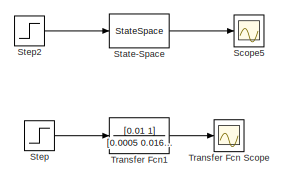
[diagram: root canvas - part 1/5, top left region]
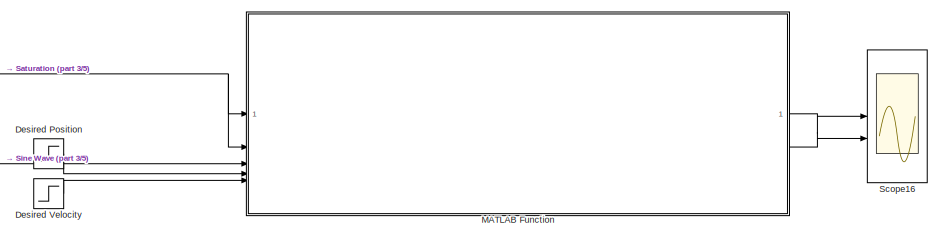
[diagram: root canvas - part 2/5, top right region]
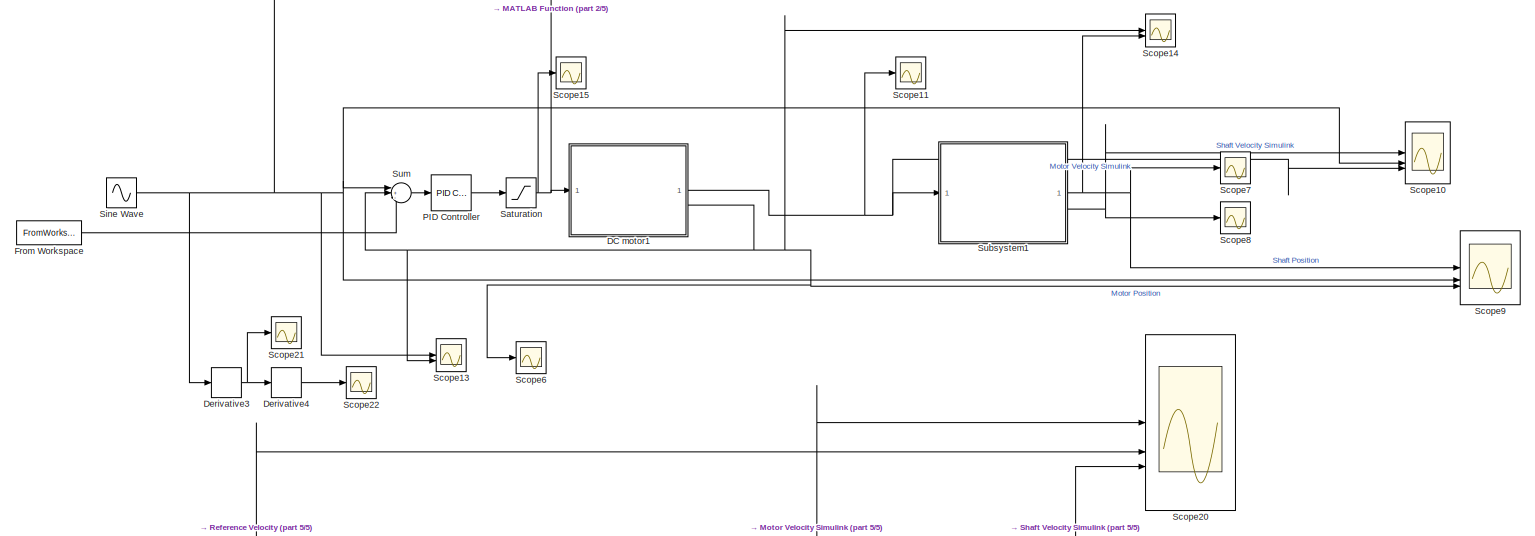
[diagram: root canvas - part 3/5, middle left region]
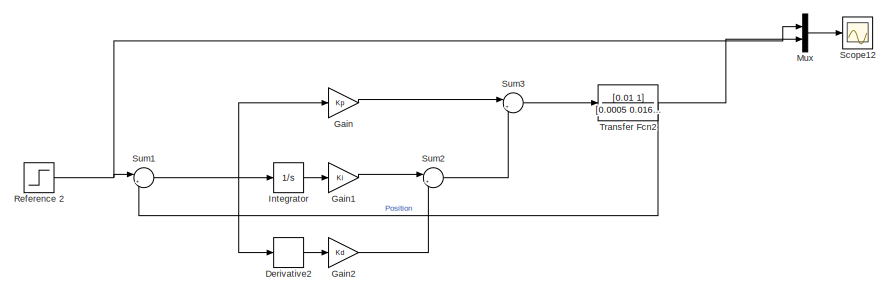
[diagram: root canvas - part 4/5, middle right region]
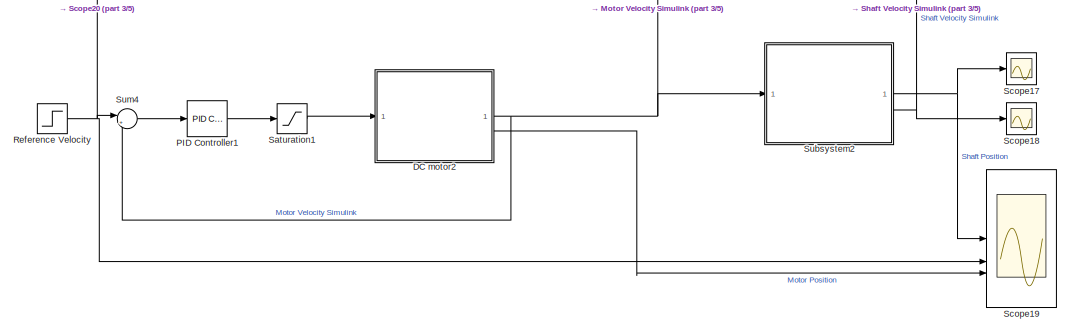
[diagram: root canvas - part 5/5, bottom left region]
MODEL slx_26b054269566
KIND model
CONFIG AbsTol = auto
CONFIG EnableMultiTasking = off
CONFIG FixedStep = auto
CONFIG MaxStep = auto
CONFIG MinStep = auto
CONFIG RelTol = 1e-3
CONFIG SampleTimeConstraint = Unconstrained
CONFIG SolverName = VariableStepAuto
CONFIG StartTime = 0.0
CONFIG StopTime = 10.0
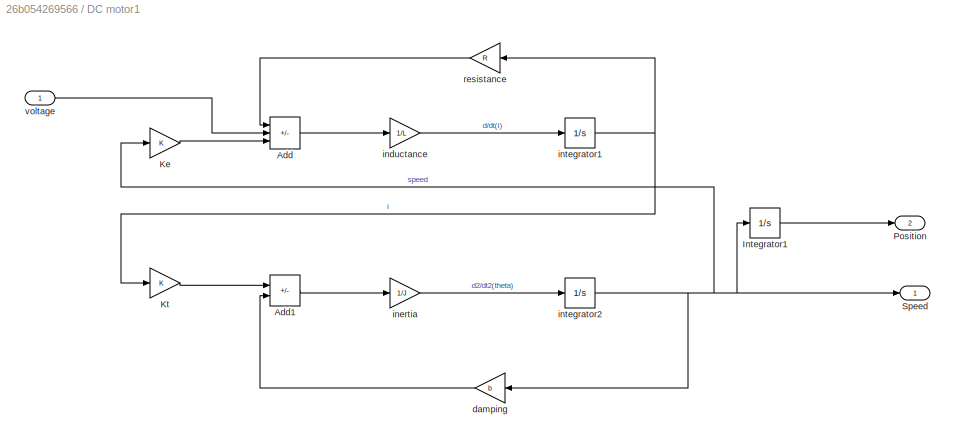
BLOCK [SubSystem] DC motor1
BLOCK [Sum] DC motor1/Add
  IconShape = rectangular
  Inputs = -+-
BLOCK [Sum] DC motor1/Add1
  IconShape = rectangular
  Inputs = +-
BLOCK [Integrator] DC motor1/Integrator1
BLOCK [Gain] DC motor1/Ke
  Gain = K
BLOCK [Gain] DC motor1/Kt
  Gain = K
BLOCK [Outport] DC motor1/Position
  Port = 2
BLOCK [Outport] DC motor1/Speed
BLOCK [Gain] DC motor1/damping
  Gain = b
BLOCK [Gain] DC motor1/inductance 
  Gain = 1/L
BLOCK [Gain] DC motor1/inertia
  Gain = 1/J
BLOCK [Integrator] DC motor1/integrator1
BLOCK [Integrator] DC motor1/integrator2
BLOCK [Gain] DC motor1/resistance
  Gain = R
BLOCK [Inport] DC motor1/voltage
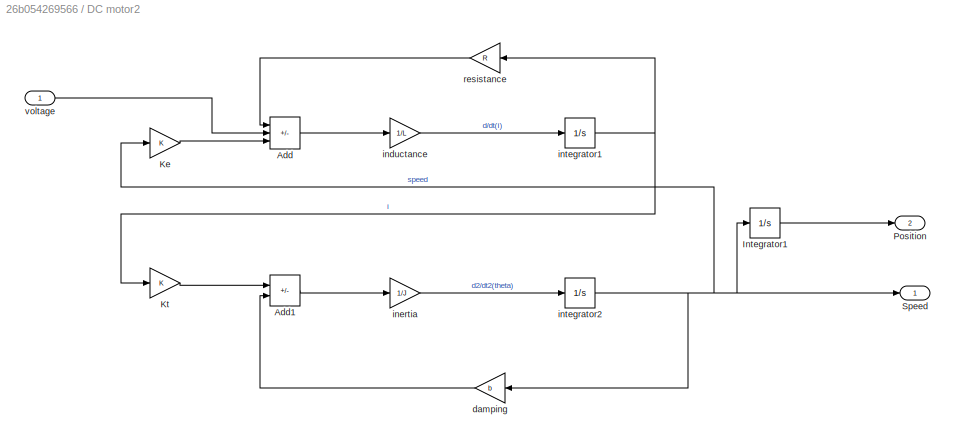
BLOCK [SubSystem] DC motor2
BLOCK [Sum] DC motor2/Add
  IconShape = rectangular
  Inputs = -+-
BLOCK [Sum] DC motor2/Add1
  IconShape = rectangular
  Inputs = +-
BLOCK [Integrator] DC motor2/Integrator1
BLOCK [Gain] DC motor2/Ke
  Gain = K
BLOCK [Gain] DC motor2/Kt
  Gain = K
BLOCK [Outport] DC motor2/Position
  Port = 2
BLOCK [Outport] DC motor2/Speed
BLOCK [Gain] DC motor2/damping
  Gain = b
BLOCK [Gain] DC motor2/inductance 
  Gain = 1/L
BLOCK [Gain] DC motor2/inertia
  Gain = 1/J
BLOCK [Integrator] DC motor2/integrator1
BLOCK [Integrator] DC motor2/integrator2
BLOCK [Gain] DC motor2/resistance
  Gain = R
BLOCK [Inport] DC motor2/voltage
BLOCK [Derivative] Derivative2
BLOCK [Derivative] Derivative3
BLOCK [Derivative] Derivative4
BLOCK [Step] Desired Position 
  After = 50
  SampleTime = 0
BLOCK [Step] Desired Velocity
  After = 5
  SampleTime = 0
BLOCK [FromWorkspace] From Workspace
  VariableName = position_time_matrix
BLOCK [Gain] Gain
  Gain = Kp
BLOCK [Gain] Gain1
  Gain = Ki
BLOCK [Gain] Gain2
  Gain = Kd
BLOCK [Integrator] Integrator
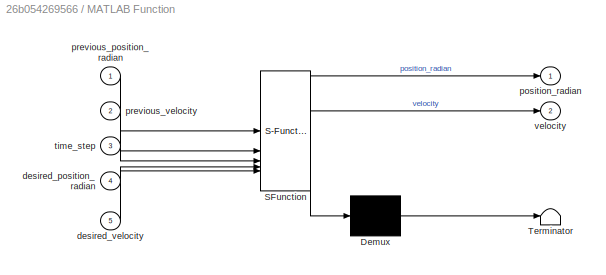
BLOCK [SubSystem] MATLAB Function
  ErrorFcn = Stateflow.Translate.translate
  LibrarySourceBlock = simulink/User-Defined\nFunctions/MATLAB Function
  PermitHierarchicalResolution = ExplicitOnly
  SFBlockType = MATLAB Function
  TreatAsAtomicUnit = on
BLOCK [Demux] MATLAB Function/ Demux 
  Outputs = 1
BLOCK [S-Function] MATLAB Function/ SFunction 
  EnableBusSupport = on
  FunctionName = sf_sfun
  PortCounts = [5 3]
  SFcnIsStateOwnerBlock = off
  SFunctionDeploymentMode = off
  Tag = Stateflow S-Function 2
BLOCK [Terminator] MATLAB Function/ Terminator 
BLOCK [Inport] MATLAB Function/desired_position_radian
  Port = 4
BLOCK [Inport] MATLAB Function/desired_velocity
  Port = 5
BLOCK [Outport] MATLAB Function/position_radian
BLOCK [Inport] MATLAB Function/previous_position_radian
BLOCK [Inport] MATLAB Function/previous_velocity
  Port = 2
BLOCK [Inport] MATLAB Function/time_step
  Port = 3
BLOCK [Outport] MATLAB Function/velocity
  Port = 2
BLOCK [Mux] Mux
  DisplayOption = bar
  Inputs = 2
BLOCK [Reference] PID Controller  REF=slpidlib/PID Controller
  LibrarySourceBlock = simulink/Continuous/PID Controller
  SourceBlock = slpidlib/PID Controller
  SourceType = PID 1dof
BLOCK [Reference] PID Controller1  REF=slpidlib/PID Controller
  LibrarySourceBlock = simulink/Continuous/PID Controller
  SourceBlock = slpidlib/PID Controller
  SourceType = PID 1dof
BLOCK [Step] Reference 2
  SampleTime = 0
BLOCK [Step] Reference Velocity
  SampleTime = 0
BLOCK [Saturate] Saturation
  LowerLimit = 0
  UpperLimit = 50
BLOCK [Saturate] Saturation1
  LowerLimit = -255
  UpperLimit = 255
BLOCK [Scope] Scope10
  Floating = off
  NumInputPorts = 3
  ScopeSpecificationString = Simulink.scopes.TimeScopeBlockCfg('CurrentConfiguration', extmgr.ConfigurationSet(extmgr.Configuration('Core','General UI',true),extmgr.Configuration('Core','Source UI',true),extmgr.Configuration('Sources','WiredSimulink',true,'DataLoggingVariableName','ScopeData1'),extmgr.Configuration('Visuals','Time Domain',true,'SerializedDisplays',{struct('MinYLimReal','-1.74923','MaxYLimReal','5.74436','YLab...<+1670ch>
BLOCK [Scope] Scope11
  Floating = off
  NumInputPorts = 1
  ScopeSpecificationString = Simulink.scopes.TimeScopeBlockCfg('CurrentConfiguration', extmgr.ConfigurationSet(extmgr.Configuration('Core','General UI',true),extmgr.Configuration('Core','Source UI',true),extmgr.Configuration('Sources','WiredSimulink',true,'DataLoggingVariableName','ScopeData2'),extmgr.Configuration('Visuals','Time Domain',true,'SerializedDisplays',{struct('MinYLimReal','-6.24384','MaxYLimReal','6.24377','YLab...<+1409ch>
BLOCK [Scope] Scope12
  Floating = off
  NumInputPorts = 1
  ScopeSpecificationString = Simulink.scopes.TimeScopeBlockCfg('CurrentConfiguration', extmgr.ConfigurationSet(extmgr.Configuration('Core','General UI',true),extmgr.Configuration('Core','Source UI',true),extmgr.Configuration('Sources','WiredSimulink',true,'DataLoggingVariableName','ScopeData3'),extmgr.Configuration('Visuals','Time Domain',true,'SerializedDisplays',{struct('MinYLimReal','-0.14179','MaxYLimReal','1.27613','YLab...<+1381ch>
BLOCK [Scope] Scope13
  Floating = off
  NumInputPorts = 2
  ScopeSpecificationString = Simulink.scopes.TimeScopeBlockCfg('CurrentConfiguration', extmgr.ConfigurationSet(extmgr.Configuration('Core','General UI',true),extmgr.Configuration('Core','Source UI',true),extmgr.Configuration('Sources','WiredSimulink',true,'DataLoggingVariableName','ScopeData4'),extmgr.Configuration('Visuals','Time Domain',true,'SerializedDisplays',{struct('MinYLimReal','-49.18523','MaxYLimReal','261.02058','Y...<+1416ch>
BLOCK [Scope] Scope14
  Floating = off
  NumInputPorts = 2
  ScopeSpecificationString = Simulink.scopes.TimeScopeBlockCfg('CurrentConfiguration', extmgr.ConfigurationSet(extmgr.Configuration('Core','General UI',true),extmgr.Configuration('Core','Source UI',true),extmgr.Configuration('Sources','WiredSimulink',true,'DataLoggingVariableName','ScopeData5'),extmgr.Configuration('Visuals','Time Domain',true,'SerializedDisplays',{struct('MinYLimReal','-49.18523','MaxYLimReal','261.02058','Y...<+1446ch>
BLOCK [Scope] Scope15
  Floating = off
  NumInputPorts = 1
  ScopeSpecificationString = Simulink.scopes.TimeScopeBlockCfg('CurrentConfiguration', extmgr.ConfigurationSet(extmgr.Configuration('Core','General UI',true),extmgr.Configuration('Core','Source UI',true),extmgr.Configuration('Sources','WiredSimulink',true,'DataLoggingVariableName','ScopeData6'),extmgr.Configuration('Visuals','Time Domain',true,'SerializedDisplays',{struct('MinYLimReal','-62.5','MaxYLimReal','62.5','YLabelReal...<+1349ch>
BLOCK [Scope] Scope16
  Floating = off
  NumInputPorts = 2
  ScopeSpecificationString = Simulink.scopes.TimeScopeBlockCfg('CurrentConfiguration', extmgr.ConfigurationSet(extmgr.Configuration('Core','General UI',true),extmgr.Configuration('Core','Source UI',true),extmgr.Configuration('Sources','WiredSimulink',true,'DataLoggingVariableName','ScopeData7'),extmgr.Configuration('Visuals','Time Domain',true,'SerializedDisplays',{struct('MinYLimReal','-0.43916','MaxYLimReal','6.26731','YLab...<+1461ch>
BLOCK [Scope] Scope17
  Floating = off
  NumInputPorts = 1
  ScopeSpecificationString = Simulink.scopes.TimeScopeBlockCfg('CurrentConfiguration', extmgr.ConfigurationSet(extmgr.Configuration('Core','General UI',true),extmgr.Configuration('Core','Source UI',true),extmgr.Configuration('Sources','WiredSimulink',true,'DataLoggingVariableName','ScopeData8'),extmgr.Configuration('Visuals','Time Domain',true,'SerializedDisplays',{struct('MinYLimReal','-0.20456','MaxYLimReal','1.841','YLabel...<+1386ch>
BLOCK [Scope] Scope18
  Floating = off
  NameLocation = top
  NumInputPorts = 1
  ScopeSpecificationString = Simulink.scopes.TimeScopeBlockCfg('CurrentConfiguration', extmgr.ConfigurationSet(extmgr.Configuration('Core','General UI',true),extmgr.Configuration('Core','Source UI',true),extmgr.Configuration('Sources','WiredSimulink',true,'DataLoggingVariableName','ScopeData9'),extmgr.Configuration('Visuals','Time Domain',true,'SerializedDisplays',{struct('MinYLimReal','-0.1869','MaxYLimReal','1.2015','YLabel...<+1454ch>
BLOCK [Scope] Scope19
  Floating = off
  NumInputPorts = 3
  ScopeSpecificationString = Simulink.scopes.TimeScopeBlockCfg('CurrentConfiguration', extmgr.ConfigurationSet(extmgr.Configuration('Core','General UI',true),extmgr.Configuration('Core','Source UI',true),extmgr.Configuration('Sources','WiredSimulink',true,'DataLoggingVariableName','ScopeData10'),extmgr.Configuration('Visuals','Time Domain',true,'SerializedDisplays',{struct('MinYLimReal','-62.27645','MaxYLimReal','560.48807','...<+1441ch>
BLOCK [Scope] Scope20
  Floating = off
  NumInputPorts = 3
  ScopeSpecificationString = Simulink.scopes.TimeScopeBlockCfg('CurrentConfiguration', extmgr.ConfigurationSet(extmgr.Configuration('Core','General UI',true),extmgr.Configuration('Core','Source UI',true),extmgr.Configuration('Sources','WiredSimulink',true,'DataLoggingVariableName','ScopeData11'),extmgr.Configuration('Visuals','Time Domain',true,'SerializedDisplays',{struct('MinYLimReal','-0.125','MaxYLimReal','1.12502','YLabe...<+1485ch>
BLOCK [Scope] Scope21
  Floating = off
  NumInputPorts = 1
  ScopeSpecificationString = Simulink.scopes.TimeScopeBlockCfg('CurrentConfiguration', extmgr.ConfigurationSet(extmgr.Configuration('Core','General UI',true),extmgr.Configuration('Core','Source UI',true),extmgr.Configuration('Sources','WiredSimulink',true,'DataLoggingVariableName','ScopeData12'),extmgr.Configuration('Visuals','Time Domain',true,'SerializedDisplays',{struct('MinYLimReal','-175921860444159.96875','MaxYLimReal',...<+1483ch>
BLOCK [Scope] Scope22
  Floating = off
  NumInputPorts = 1
  ScopeSpecificationString = Simulink.scopes.TimeScopeBlockCfg('CurrentConfiguration', extmgr.ConfigurationSet(extmgr.Configuration('Core','General UI',true),extmgr.Configuration('Core','Source UI',true),extmgr.Configuration('Sources','WiredSimulink',true,'DataLoggingVariableName','ScopeData13'),extmgr.Configuration('Visuals','Time Domain',true,'SerializedDisplays',{struct('MinYLimReal','-136173404321391830238903664640.00000'...<+1599ch>
BLOCK [Scope] Scope5
  Floating = off
  NumInputPorts = 1
  ScopeSpecificationString = Simulink.scopes.TimeScopeBlockCfg('CurrentConfiguration', extmgr.ConfigurationSet(extmgr.Configuration('Core','General UI',true),extmgr.Configuration('Core','Source UI',true),extmgr.Configuration('Sources','WiredSimulink',true,'DataLoggingVariableName','ScopeData17'),extmgr.Configuration('Visuals','Time Domain',true,'SerializedDisplays',{struct('MinYLimReal','0.05272','MaxYLimReal','19.95422','YLa...<+1444ch>
BLOCK [Scope] Scope6
  Floating = off
  NumInputPorts = 1
  ScopeSpecificationString = Simulink.scopes.TimeScopeBlockCfg('CurrentConfiguration', extmgr.ConfigurationSet(extmgr.Configuration('Core','General UI',true),extmgr.Configuration('Core','Source UI',true),extmgr.Configuration('Sources','WiredSimulink',true,'DataLoggingVariableName','ScopeData14'),extmgr.Configuration('Visuals','Time Domain',true,'SerializedDisplays',{struct('MinYLimReal','-49.18523','MaxYLimReal','261.02058','...<+1382ch>
BLOCK [Scope] Scope7
  Floating = off
  NumInputPorts = 1
  ScopeSpecificationString = Simulink.scopes.TimeScopeBlockCfg('CurrentConfiguration', extmgr.ConfigurationSet(extmgr.Configuration('Core','General UI',true),extmgr.Configuration('Core','Source UI',true),extmgr.Configuration('Sources','WiredSimulink',true,'DataLoggingVariableName','ScopeData15'),extmgr.Configuration('Visuals','Time Domain',true,'SerializedDisplays',{struct('MinYLimReal','-0.20456','MaxYLimReal','1.841','YLabe...<+1387ch>
BLOCK [Scope] Scope8
  Floating = off
  NameLocation = top
  NumInputPorts = 1
  ScopeSpecificationString = Simulink.scopes.TimeScopeBlockCfg('CurrentConfiguration', extmgr.ConfigurationSet(extmgr.Configuration('Core','General UI',true),extmgr.Configuration('Core','Source UI',true),extmgr.Configuration('Sources','WiredSimulink',true,'DataLoggingVariableName','ScopeData16'),extmgr.Configuration('Visuals','Time Domain',true,'SerializedDisplays',{struct('MinYLimReal','-0.1869','MaxYLimReal','1.2015','YLabe...<+1455ch>
BLOCK [Scope] Scope9
  Floating = off
  NumInputPorts = 3
  ScopeSpecificationString = Simulink.scopes.TimeScopeBlockCfg('CurrentConfiguration', extmgr.ConfigurationSet(extmgr.Configuration('Core','General UI',true),extmgr.Configuration('Core','Source UI',true),extmgr.Configuration('Sources','WiredSimulink',true),extmgr.Configuration('Visuals','Time Domain',true,'SerializedDisplays',{struct('MinYLimReal','-98.40325','MaxYLimReal','50.69138','YLabelReal','','MinYLimMag','0.00000','Ma...<+1484ch>
BLOCK [Sin] Sine Wave
  SampleTime = 0
BLOCK [StateSpace] State-Space
  A = [-32 -1260 -12400 -20020 0; 1 0 0 0 0; 0 1 0 0 0; 0 0 1 0 0; 0 0 0 1 0]
  B = [1; 0; 0; 0; 0]
  C = [0 0 0 20 2000]
  D = [0]
  InitialCondition = [0;0;0;0;0]
BLOCK [Step] Step
  After = 5
  SampleTime = 0
BLOCK [Step] Step2
  After = 5
  SampleTime = 0
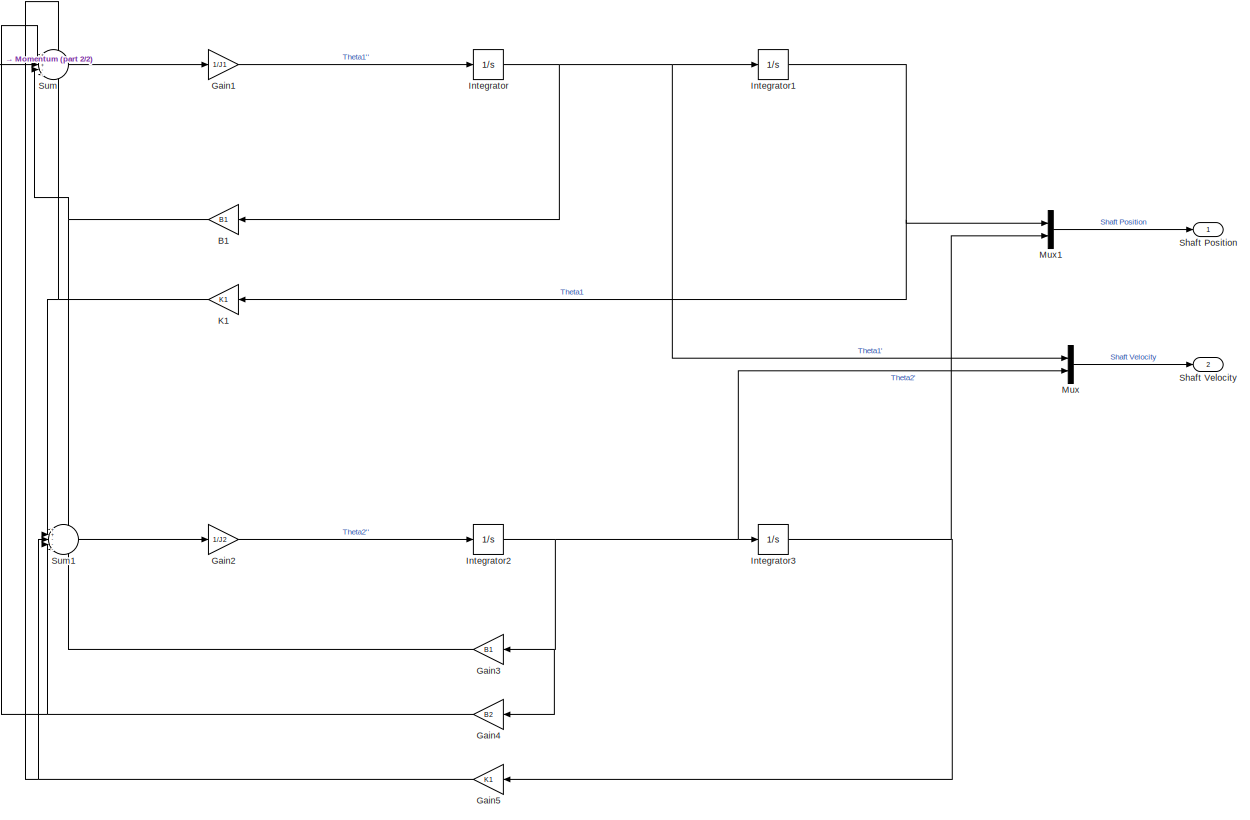
[diagram: Subsystem1 - part 1/2, most of the canvas]
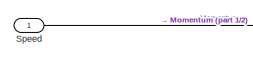
[diagram: Subsystem1 - part 2/2, top left region]
BLOCK [SubSystem] Subsystem1
BLOCK [Gain] Subsystem1/B1
  Gain = B1
BLOCK [Gain] Subsystem1/Gain1
  Gain = 1/J1
BLOCK [Gain] Subsystem1/Gain2
  Gain = 1/J2
BLOCK [Gain] Subsystem1/Gain3
  Gain = B1
BLOCK [Gain] Subsystem1/Gain4
  Gain = B2
BLOCK [Gain] Subsystem1/Gain5
  Gain = K1
BLOCK [Integrator] Subsystem1/Integrator
BLOCK [Integrator] Subsystem1/Integrator1
BLOCK [Integrator] Subsystem1/Integrator2
BLOCK [Integrator] Subsystem1/Integrator3
BLOCK [Gain] Subsystem1/K1
  Gain = K1
BLOCK [Mux] Subsystem1/Mux
  DisplayOption = bar
  Inputs = 2
BLOCK [Mux] Subsystem1/Mux1
  DisplayOption = bar
  Inputs = 2
BLOCK [Outport] Subsystem1/Shaft Position
BLOCK [Outport] Subsystem1/Shaft Velocity
  Port = 2
BLOCK [Inport] Subsystem1/Speed
BLOCK [Sum] Subsystem1/Sum
  Inputs = +++--
BLOCK [Sum] Subsystem1/Sum1
  Inputs = ++---
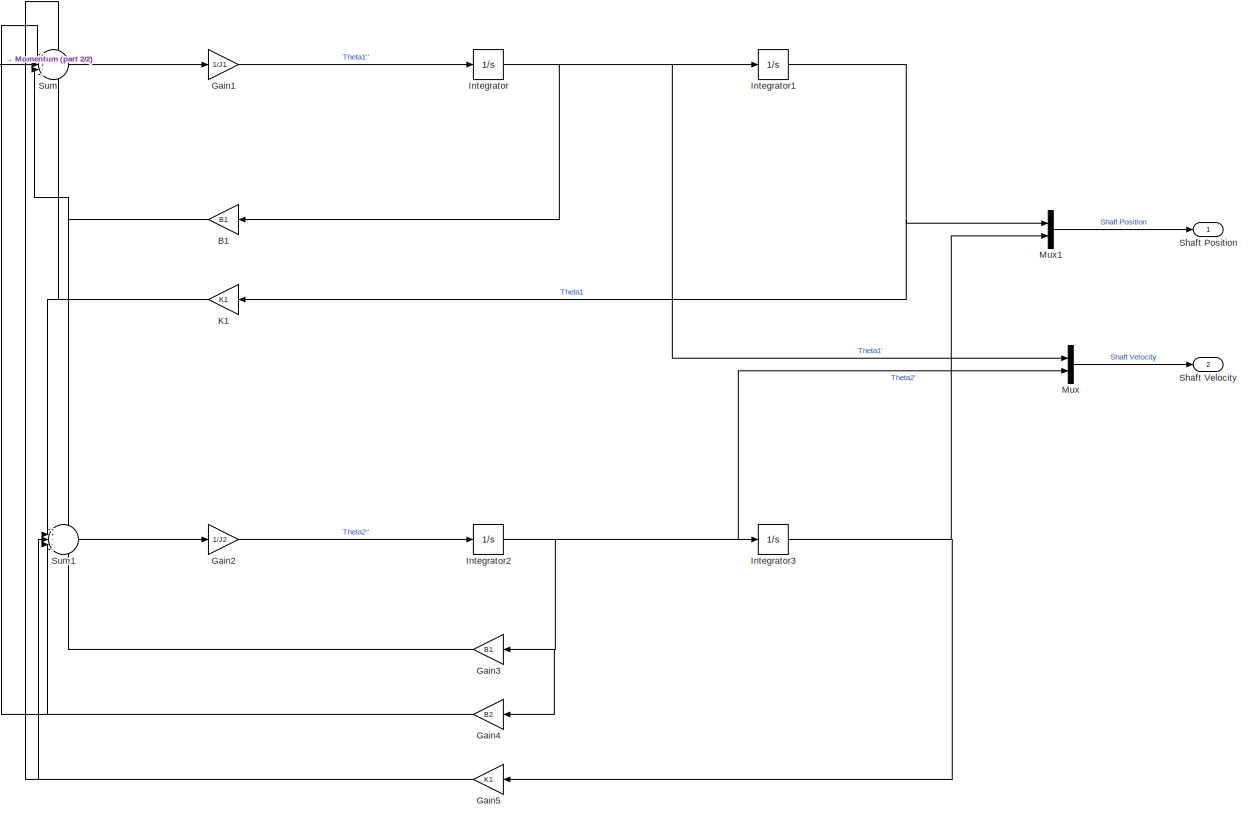
[diagram: Subsystem2 - part 1/2, most of the canvas]
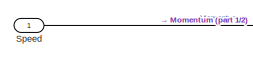
[diagram: Subsystem2 - part 2/2, top left region]
BLOCK [SubSystem] Subsystem2
BLOCK [Gain] Subsystem2/B1
  Gain = B1
BLOCK [Gain] Subsystem2/Gain1
  Gain = 1/J1
BLOCK [Gain] Subsystem2/Gain2
  Gain = 1/J2
BLOCK [Gain] Subsystem2/Gain3
  Gain = B1
BLOCK [Gain] Subsystem2/Gain4
  Gain = B2
BLOCK [Gain] Subsystem2/Gain5
  Gain = K1
BLOCK [Integrator] Subsystem2/Integrator
BLOCK [Integrator] Subsystem2/Integrator1
BLOCK [Integrator] Subsystem2/Integrator2
BLOCK [Integrator] Subsystem2/Integrator3
BLOCK [Gain] Subsystem2/K1
  Gain = K1
BLOCK [Mux] Subsystem2/Mux
  DisplayOption = bar
  Inputs = 2
BLOCK [Mux] Subsystem2/Mux1
  DisplayOption = bar
  Inputs = 2
BLOCK [Outport] Subsystem2/Shaft Position
BLOCK [Outport] Subsystem2/Shaft Velocity
  Port = 2
BLOCK [Inport] Subsystem2/Speed
BLOCK [Sum] Subsystem2/Sum
  Inputs = +++--
BLOCK [Sum] Subsystem2/Sum1
  Inputs = ++---
BLOCK [Sum] Sum
  Inputs = |+-+
BLOCK [Sum] Sum1
  Inputs = |+-
BLOCK [Sum] Sum2
  Inputs = |++
BLOCK [Sum] Sum3
  Inputs = |++
BLOCK [Sum] Sum4
  Inputs = |+-
BLOCK [Scope] Transfer Fcn Scope
  Floating = off
  NumInputPorts = 1
  ScopeSpecificationString = Simulink.scopes.TimeScopeBlockCfg('CurrentConfiguration', extmgr.ConfigurationSet(extmgr.Configuration('Core','General UI',true),extmgr.Configuration('Core','Source UI',true),extmgr.Configuration('Sources','WiredSimulink',true,'DataLoggingVariableName','ScopeData18'),extmgr.Configuration('Visuals','Time Domain',true,'SerializedDisplays',{struct('MinYLimReal','-0.52389','MaxYLimReal','4.715','YLabe...<+1365ch>
BLOCK [TransferFcn] Transfer Fcn1
  Denominator = [0.0005 0.016 0.63001 6.2002 10.01 0]
  Numerator = [0.01 1]
BLOCK [TransferFcn] Transfer Fcn2
  Denominator = [0.0005 0.016 0.63001 6.2002 10.01 0]
  Numerator = [0.01 1]
LINE DC motor1/Add1:1 -> DC motor1/inertia:1
LINE DC motor1/Add:1 -> DC motor1/inductance :1
LINE DC motor1/Integrator1:1 -> DC motor1/Position:1
LINE DC motor1/Ke:1 -> DC motor1/Add:3
LINE DC motor1/Kt:1 -> DC motor1/Add1:1
LINE DC motor1/damping:1 -> DC motor1/Add1:2
LINE DC motor1/inductance :1 -> DC motor1/integrator1:1
LINE DC motor1/inertia:1 -> DC motor1/integrator2:1
NET DC motor1/integrator1:1 -> DC motor1/Kt:1, DC motor1/resistance:1
NET DC motor1/integrator2:1 -> DC motor1/Integrator1:1, DC motor1/Ke:1, DC motor1/Speed:1, DC motor1/damping:1
LINE DC motor1/resistance:1 -> DC motor1/Add:1
LINE DC motor1/voltage:1 -> DC motor1/Add:2
NET DC motor1:1 -> Scope10:3, Scope11:1, Subsystem1:1
NET DC motor1:2 -> Scope13:2, Scope14:1, Scope6:1, Scope9:3, Sum:2
LINE DC motor2/Add1:1 -> DC motor2/inertia:1
LINE DC motor2/Add:1 -> DC motor2/inductance :1
LINE DC motor2/Integrator1:1 -> DC motor2/Position:1
LINE DC motor2/Ke:1 -> DC motor2/Add:3
LINE DC motor2/Kt:1 -> DC motor2/Add1:1
LINE DC motor2/damping:1 -> DC motor2/Add1:2
LINE DC motor2/inductance :1 -> DC motor2/integrator1:1
LINE DC motor2/inertia:1 -> DC motor2/integrator2:1
NET DC motor2/integrator1:1 -> DC motor2/Kt:1, DC motor2/resistance:1
NET DC motor2/integrator2:1 -> DC motor2/Integrator1:1, DC motor2/Ke:1, DC motor2/Speed:1, DC motor2/damping:1
LINE DC motor2/resistance:1 -> DC motor2/Add:1
LINE DC motor2/voltage:1 -> DC motor2/Add:2
NET DC motor2:1 -> Scope20:1, Subsystem2:1, Sum4:2
LINE DC motor2:2 -> Scope19:3
LINE Derivative2:1 -> Gain2:1
NET Derivative3:1 -> Derivative4:1, Scope21:1
LINE Derivative4:1 -> Scope22:1
LINE Desired Position :1 -> MATLAB Function:4
LINE Desired Velocity:1 -> MATLAB Function:5
LINE From Workspace:1 -> Sum:3
LINE Gain1:1 -> Sum2:1
LINE Gain2:1 -> Sum2:2
LINE Gain:1 -> Sum3:1
LINE Integrator:1 -> Gain1:1
LINE MATLAB Function:1 -> Scope16:1
LINE MATLAB Function:2 -> Scope16:2
LINE Mux:1 -> Scope12:1
LINE PID Controller1:1 -> Saturation1:1
LINE PID Controller:1 -> Saturation:1
NET Reference 2:1 -> Mux:1, Sum1:1
NET Reference Velocity:1 -> Scope19:2, Scope20:2, Sum4:1
LINE Saturation1:1 -> DC motor2:1
NET Saturation:1 -> DC motor1:1, MATLAB Function:1, MATLAB Function:2, Scope15:1
NET Sine Wave:1 -> Derivative3:1, MATLAB Function:3, Scope10:2, Scope13:1, Scope9:2, Sum:1
LINE State-Space:1 -> Scope5:1
LINE Step2:1 -> State-Space:1
LINE Step:1 -> Transfer Fcn1:1
NET Subsystem1/B1:1 -> Subsystem1/Sum1:1, Subsystem1/Sum:4
LINE Subsystem1/Gain1:1 -> Subsystem1/Integrator:1
LINE Subsystem1/Gain2:1 -> Subsystem1/Integrator2:1
LINE Subsystem1/Gain3:1 -> Subsystem1/Sum1:5
NET Subsystem1/Gain4:1 -> Subsystem1/Sum1:4, Subsystem1/Sum:2
NET Subsystem1/Gain5:1 -> Subsystem1/Sum1:3, Subsystem1/Sum:1
NET Subsystem1/Integrator1:1 -> Subsystem1/K1:1, Subsystem1/Mux1:1
NET Subsystem1/Integrator2:1 -> Subsystem1/Gain3:1, Subsystem1/Gain4:1, Subsystem1/Integrator3:1, Subsystem1/Mux:2
NET Subsystem1/Integrator3:1 -> Subsystem1/Gain5:1, Subsystem1/Mux1:2
NET Subsystem1/Integrator:1 -> Subsystem1/B1:1, Subsystem1/Integrator1:1, Subsystem1/Mux:1
NET Subsystem1/K1:1 -> Subsystem1/Sum1:2, Subsystem1/Sum:5
LINE Subsystem1/Mux1:1 -> Subsystem1/Shaft Position:1
LINE Subsystem1/Mux:1 -> Subsystem1/Shaft Velocity:1
LINE Subsystem1/Speed:1 -> Subsystem1/Sum:3
LINE Subsystem1/Sum1:1 -> Subsystem1/Gain2:1
LINE Subsystem1/Sum:1 -> Subsystem1/Gain1:1
NET Subsystem1:1 -> Scope14:2, Scope7:1, Scope9:1
NET Subsystem1:2 -> Scope10:1, Scope8:1
NET Subsystem2/B1:1 -> Subsystem2/Sum1:1, Subsystem2/Sum:4
LINE Subsystem2/Gain1:1 -> Subsystem2/Integrator:1
LINE Subsystem2/Gain2:1 -> Subsystem2/Integrator2:1
LINE Subsystem2/Gain3:1 -> Subsystem2/Sum1:5
NET Subsystem2/Gain4:1 -> Subsystem2/Sum1:4, Subsystem2/Sum:2
NET Subsystem2/Gain5:1 -> Subsystem2/Sum1:3, Subsystem2/Sum:1
NET Subsystem2/Integrator1:1 -> Subsystem2/K1:1, Subsystem2/Mux1:1
NET Subsystem2/Integrator2:1 -> Subsystem2/Gain3:1, Subsystem2/Gain4:1, Subsystem2/Integrator3:1, Subsystem2/Mux:2
NET Subsystem2/Integrator3:1 -> Subsystem2/Gain5:1, Subsystem2/Mux1:2
NET Subsystem2/Integrator:1 -> Subsystem2/B1:1, Subsystem2/Integrator1:1, Subsystem2/Mux:1
NET Subsystem2/K1:1 -> Subsystem2/Sum1:2, Subsystem2/Sum:5
LINE Subsystem2/Mux1:1 -> Subsystem2/Shaft Position:1
LINE Subsystem2/Mux:1 -> Subsystem2/Shaft Velocity:1
LINE Subsystem2/Speed:1 -> Subsystem2/Sum:3
LINE Subsystem2/Sum1:1 -> Subsystem2/Gain2:1
LINE Subsystem2/Sum:1 -> Subsystem2/Gain1:1
NET Subsystem2:1 -> Scope17:1, Scope19:1
NET Subsystem2:2 -> Scope18:1, Scope20:3
NET Sum1:1 -> Derivative2:1, Gain:1, Integrator:1
LINE Sum2:1 -> Sum3:2
LINE Sum3:1 -> Transfer Fcn2:1
LINE Sum4:1 -> PID Controller1:1
LINE Sum:1 -> PID Controller:1
LINE Transfer Fcn1:1 -> Transfer Fcn Scope:1
NET Transfer Fcn2:1 -> Mux:2, Sum1:2
note: NET lines group one-source signal fan-out (src -> all destinations, sorted); 1:1 wires keep LINE
CHART MATLAB Function states=1 transitions=1
  STATE_LABEL 'eML_blk_kernel()'
  STATE_LABEL 'SCRIPT:\nfunction [position_radian, velocity] = simulate_encoder(previous_position_radian, previous_velocity, time_step, desired_position_radian, desired_velocity)\n    % Simülasyon parametreleri\n    encoder_resolution = 1000; % Kodlayıcı çözünürlüğü (pulse/sayı)\n    max_velocity = 10; % Maksimum hız (rad/s)\n\n    % Pozisyonun radyan cinsinden hesaplanması\n    previous_position_pulse = previous_posit...<+1015ch>'
CHART  states=0 transitions=0
